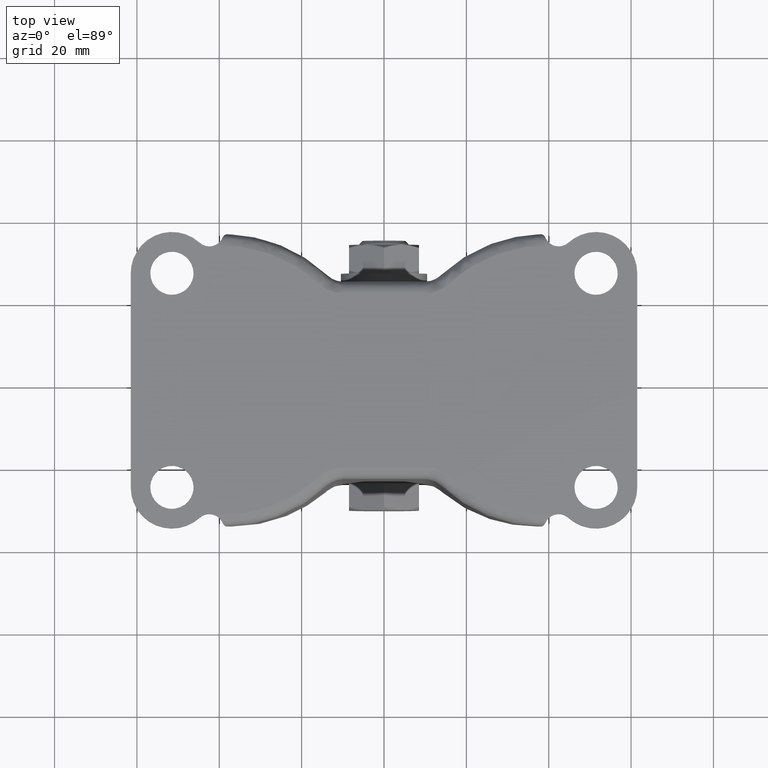
[diagram: clean part render]
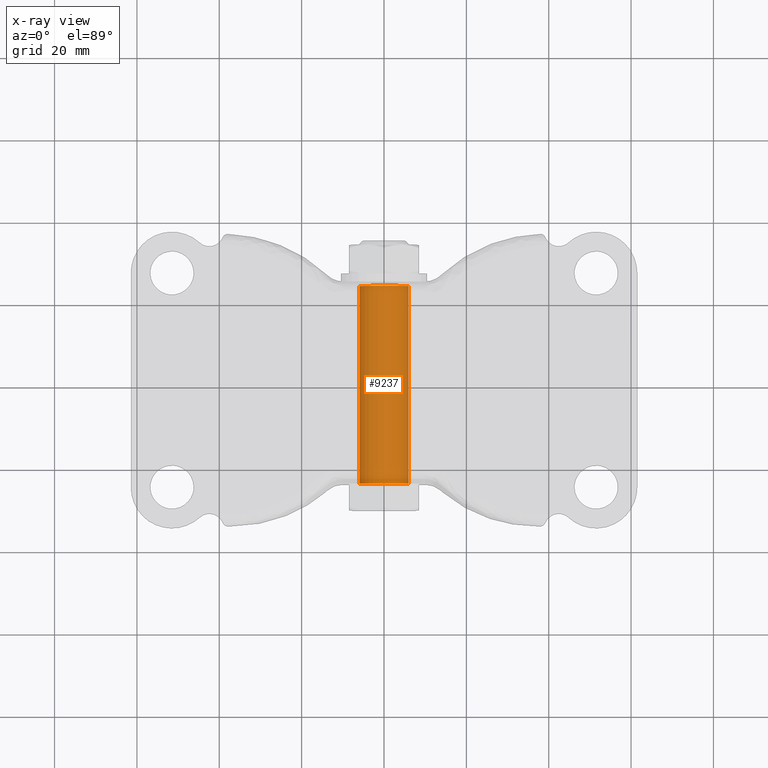
[diagram: x-ray — body ghosted, one internal face saturated and labeled with its STEP entity id]
A machine part, top view, then the same camera in x-ray: the body is ghosted and one INTERNAL B-rep face — a face not visible from any outside direction — is saturated and labeled: STEP entity #9237.
In plain terms, the highlighted face is a freeform B-spline surface patch.
Its self-contained STEP definition (entity closure, byte-faithful):
#8982=CARTESIAN_POINT('',(0.0,-24.0,-62.500000999999997));
#8983=VERTEX_POINT('',#8982);
#8984=CARTESIAN_POINT('',(-5.988807792375405,-24.0,-68.133708823496079));
#8985=VERTEX_POINT('',#8984);
#8986=CARTESIAN_POINT('',(0.0,-24.0,-62.500000999999997));
#8987=CARTESIAN_POINT('',(-5.644235460403928,-24.000000000000004,-62.500001000000005));
#8988=CARTESIAN_POINT('',(-5.988807792375405,-24.0,-68.133708823496065));
#8996=(BOUNDED_CURVE()B_SPLINE_CURVE(2,(#8986,#8987,#8988),.UNSPECIFIED.,.F.,.U.)B_SPLINE_CURVE_WITH_KNOTS((3,3),(0.500000000000000,0.739332962232077),.UNSPECIFIED.)CURVE()GEOMETRIC_REPRESENTATION_ITEM()RATIONAL_B_SPLINE_CURVE((1.0,0.719603993294754,0.976072041652002))REPRESENTATION_ITEM(''));
#8997=EDGE_CURVE('',#8983,#8985,#8996,.T.);
#9016=CARTESIAN_POINT('',(5.988807792375406,-24.0,-68.866291176503921));
#9017=VERTEX_POINT('',#9016);
#9031=CARTESIAN_POINT('',(5.988807792375405,-24.0,-68.866291176503921));
#9032=CARTESIAN_POINT('',(5.999999000000000,-23.999999999999996,-68.683316549410904));
#9033=CARTESIAN_POINT('',(5.999999000000000,-24.0,-68.500000000000000));
#9034=CARTESIAN_POINT('',(5.999998999999999,-23.999999999999996,-62.500000999999997));
#9035=CARTESIAN_POINT('',(0.0,-24.0,-62.500000999999997));
#9043=(BOUNDED_CURVE()B_SPLINE_CURVE(2,(#9031,#9032,#9033,#9034,#9035),.UNSPECIFIED.,.F.,.U.)B_SPLINE_CURVE_WITH_KNOTS((3,2,3),(0.239332962232077,0.250000000000000,0.500000000000000),.UNSPECIFIED.)CURVE()GEOMETRIC_REPRESENTATION_ITEM()RATIONAL_B_SPLINE_CURVE((0.976072041652002,0.987502787891793,1.0,0.707106781186548,1.0))REPRESENTATION_ITEM(''));
#9044=EDGE_CURVE('',#9017,#8983,#9043,.T.);
#9171=CARTESIAN_POINT('',(5.988807792396402,25.200000000000010,-68.866291176160601));
#9172=CARTESIAN_POINT('',(6.355098968557005,25.200000000000014,-62.877483383764208));
#9173=CARTESIAN_POINT('',(0.366291176160602,25.200000000000010,-62.511192207603600));
#9174=CARTESIAN_POINT('',(-5.622516616235800,25.200000000000014,-62.144901031442998));
#9175=CARTESIAN_POINT('',(-5.988807792396402,25.200000000000010,-68.133708823839399));
#9176=CARTESIAN_POINT('',(5.988807792396402,-25.230000000000000,-68.866291176160601));
#9177=CARTESIAN_POINT('',(6.355098968557005,-25.230000000000004,-62.877483383764208));
#9178=CARTESIAN_POINT('',(0.366291176160602,-25.230000000000000,-62.511192207603600));
#9179=CARTESIAN_POINT('',(-5.622516616235800,-25.230000000000004,-62.144901031442998));
#9180=CARTESIAN_POINT('',(-5.988807792396402,-25.230000000000000,-68.133708823839399));
#9188=(BOUNDED_SURFACE()B_SPLINE_SURFACE(2,1,((#9171,#9176),(#9172,#9177),(#9173,#9178),(#9174,#9179),(#9175,#9180)),.UNSPECIFIED.,.F.,.F.,.U.)B_SPLINE_SURFACE_WITH_KNOTS((3,2,3),(2,2),(0.0,9.941123840100030,19.882247680200059),(0.0,50.430000000000007),.UNSPECIFIED.)GEOMETRIC_REPRESENTATION_ITEM()RATIONAL_B_SPLINE_SURFACE(((1.0,1.0),(0.707106781186548,0.707106781186548),(1.0,1.0),(0.707106781186548,0.707106781186548),(1.0,1.0)))REPRESENTATION_ITEM('')SURFACE());
#9189=CARTESIAN_POINT('',(5.988807792375405,24.0,-68.866291176503907));
#9190=VERTEX_POINT('',#9189);
#9191=CARTESIAN_POINT('',(0.0,24.0,-62.500000999999997));
#9192=VERTEX_POINT('',#9191);
#9193=CARTESIAN_POINT('',(5.988807792375407,24.000000000000004,-68.866291176503893));
#9194=CARTESIAN_POINT('',(5.999999000000001,24.000000000000007,-68.683316549410904));
#9195=CARTESIAN_POINT('',(5.999999000000000,24.0,-68.500000000000000));
#9196=CARTESIAN_POINT('',(5.999998999999999,23.999999999999996,-62.500000999999997));
#9197=CARTESIAN_POINT('',(0.0,24.0,-62.500000999999997));
#9205=(BOUNDED_CURVE()B_SPLINE_CURVE(2,(#9193,#9194,#9195,#9196,#9197),.UNSPECIFIED.,.F.,.U.)B_SPLINE_CURVE_WITH_KNOTS((3,2,3),(0.239332962232077,0.250000000000000,0.500000000000000),.UNSPECIFIED.)CURVE()GEOMETRIC_REPRESENTATION_ITEM()RATIONAL_B_SPLINE_CURVE((0.976072041652004,0.987502787891794,1.0,0.707106781186548,1.0))REPRESENTATION_ITEM(''));
#9206=EDGE_CURVE('',#9190,#9192,#9205,.T.);
#9207=ORIENTED_EDGE('',*,*,#9206,.T.);
#9208=CARTESIAN_POINT('',(-5.988807792375405,24.0,-68.133708823496079));
#9209=VERTEX_POINT('',#9208);
#9210=CARTESIAN_POINT('',(0.0,24.0,-62.500000999999997));
#9211=CARTESIAN_POINT('',(-5.644235460403928,24.000000000000004,-62.500001000000005));
#9212=CARTESIAN_POINT('',(-5.988807792375405,24.0,-68.133708823496065));
#9220=(BOUNDED_CURVE()B_SPLINE_CURVE(2,(#9210,#9211,#9212),.UNSPECIFIED.,.F.,.U.)B_SPLINE_CURVE_WITH_KNOTS((3,3),(0.500000000000000,0.739332962232077),.UNSPECIFIED.)CURVE()GEOMETRIC_REPRESENTATION_ITEM()RATIONAL_B_SPLINE_CURVE((1.0,0.719603993294754,0.976072041652002))REPRESENTATION_ITEM(''));
#9221=EDGE_CURVE('',#9192,#9209,#9220,.T.);
#9222=ORIENTED_EDGE('',*,*,#9221,.T.);
#9223=CARTESIAN_POINT('',(-5.988807792375405,24.0,-68.133708823496079));
#9224=CARTESIAN_POINT('',(-5.988807792375405,-24.0,-68.133708823496079));
#9225=QUASI_UNIFORM_CURVE('',1,(#9223,#9224),.UNSPECIFIED.,.F.,.U.);
#9226=EDGE_CURVE('',#9209,#8985,#9225,.T.);
#9227=ORIENTED_EDGE('',*,*,#9226,.T.);
#9228=ORIENTED_EDGE('',*,*,#8997,.F.);
#9229=ORIENTED_EDGE('',*,*,#9044,.F.);
#9230=CARTESIAN_POINT('',(5.988807792375405,24.0,-68.866291176503907));
#9231=CARTESIAN_POINT('',(5.988807792375406,-24.0,-68.866291176503921));
#9232=QUASI_UNIFORM_CURVE('',1,(#9230,#9231),.UNSPECIFIED.,.F.,.U.);
#9233=EDGE_CURVE('',#9190,#9017,#9232,.T.);
#9234=ORIENTED_EDGE('',*,*,#9233,.F.);
#9235=EDGE_LOOP('',(#9207,#9222,#9227,#9228,#9229,#9234));
#9236=FACE_OUTER_BOUND('',#9235,.T.);
#9237=ADVANCED_FACE('',(#9236),#9188,.T.);